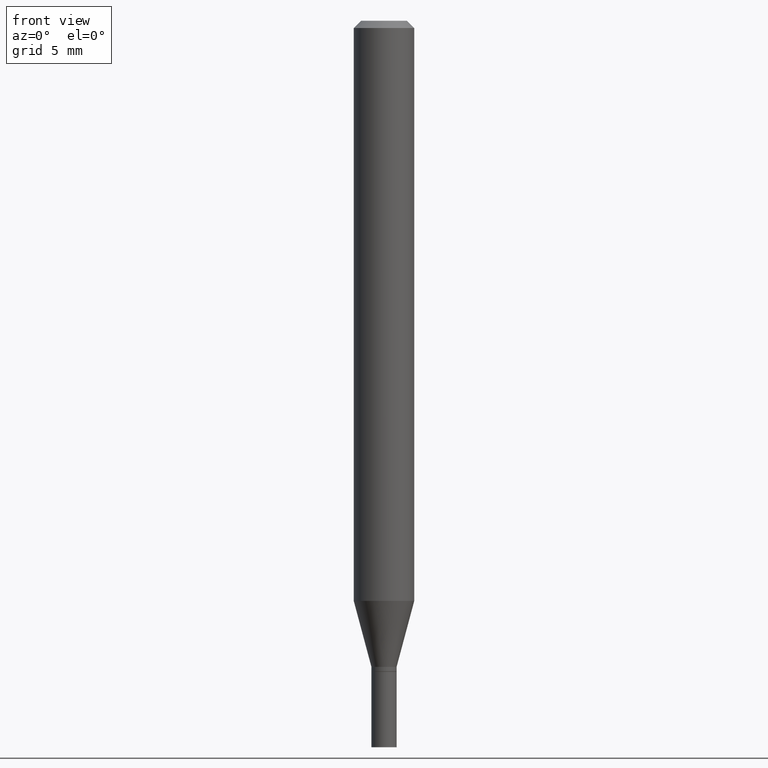
[diagram: clean part render]
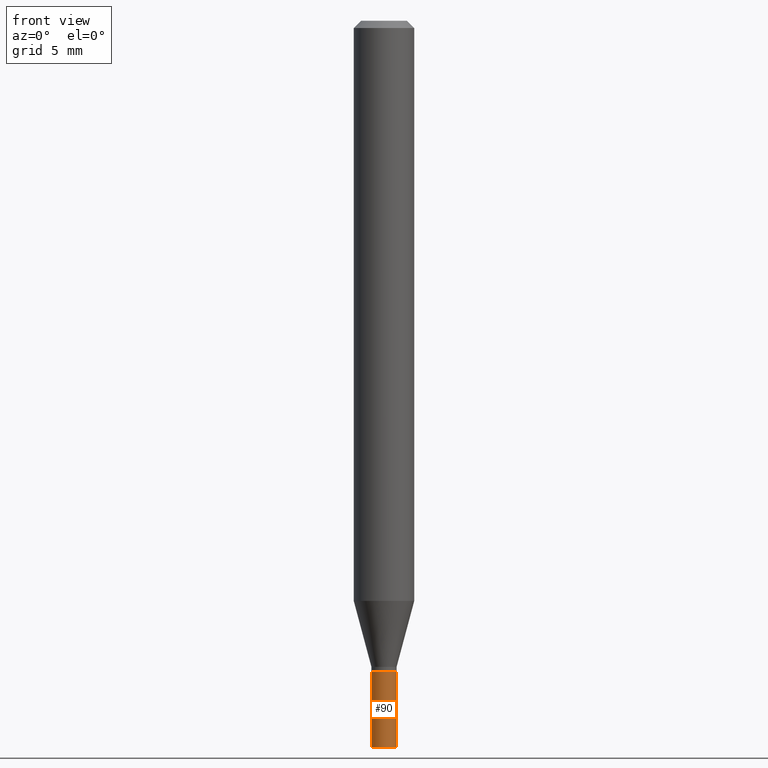
[diagram: same view with one face highlighted and labeled with its STEP entity id]
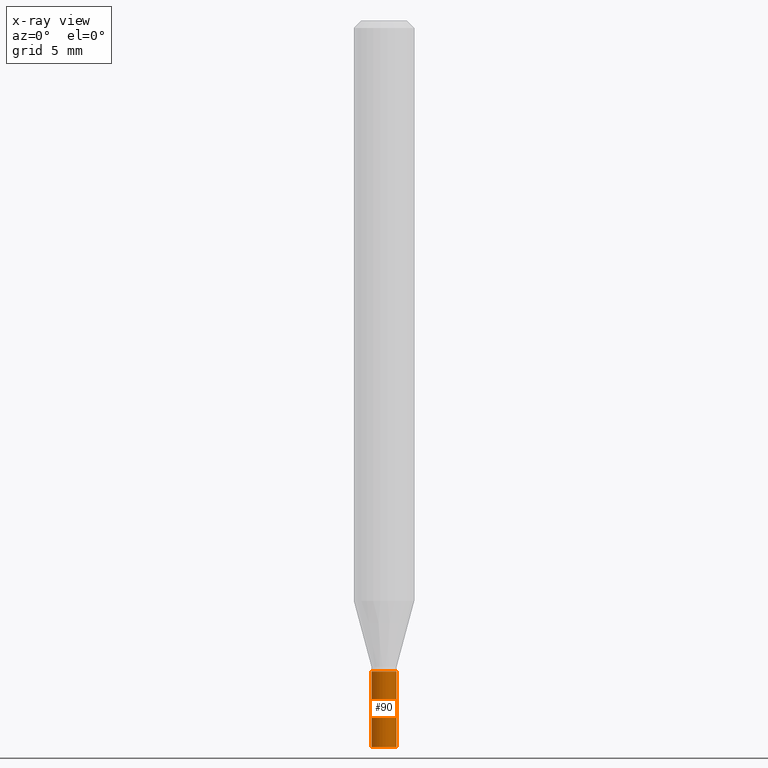
[diagram: x-ray of the same camera — body ghosted, the highlighted face saturated]
A machine part, front view. The second image highlights one B-rep face of the part: STEP entity #90.
The next image is the same camera in x-ray: the body ghosted, the highlighted face saturated — about 0% of this face is hidden behind the body in this view.
In plain terms, the highlighted cylindrical surface (edge-blend (fillet) strip) has radius 0.6604 mm, axis along (-0, 0, 1).
Its self-contained STEP definition (entity closure, byte-faithful):
#2 = DIRECTION ( 'NONE',  ( -2.445468806185136597E-29, 3.491481338843145583E-15, 1.000000000000000000 ) ) ;
#12 = CARTESIAN_POINT ( 'NONE',  ( 0.02599999999999999534, -1.815570296198429286E-16, 1.267805961706943054E-30 ) ) ;
#29 = EDGE_CURVE ( 'NONE', #324, #457, #335, .T. ) ;
#32 = DIRECTION ( 'NONE',  ( -2.445468806185136877E-29, 3.491481338843145188E-15, 1.000000000000000000 ) ) ;
#45 = VERTEX_POINT ( 'NONE', #173 ) ;
#50 = EDGE_CURVE ( 'NONE', #45, #324, #279, .T. ) ;
#59 = DIRECTION ( 'NONE',  ( -2.445468806185136597E-29, 3.491481338843145583E-15, 1.000000000000000000 ) ) ;
#61 = CARTESIAN_POINT ( 'NONE',  ( -0.02599999999999999534, -4.780145352537327941E-15, -1.344000000000000306 ) ) ;
#90 = ADVANCED_FACE ( 'NONE', ( #333 ), #438, .T. ) ;
#106 = ORIENTED_EDGE ( 'NONE', *, *, #29, .T. ) ;
#132 = AXIS2_PLACEMENT_3D ( 'NONE', #159, #2, #466 ) ;
#159 = CARTESIAN_POINT ( 'NONE',  ( 0.000000000000000000, 0.000000000000000000, 0.000000000000000000 ) ) ;
#168 = ORIENTED_EDGE ( 'NONE', *, *, #416, .F. ) ;
#173 = CARTESIAN_POINT ( 'NONE',  ( -0.02599999999999999534, -4.780145352537327941E-15, -1.500000000000000222 ) ) ;
#188 = ORIENTED_EDGE ( 'NONE', *, *, #449, .F. ) ;
#193 = DIRECTION ( 'NONE',  ( 1.000000000000000000, -6.982962677686258822E-15, 0.000000000000000000 ) ) ;
#205 = DIRECTION ( 'NONE',  ( -2.445468806185136597E-29, 3.491481338843145583E-15, 1.000000000000000000 ) ) ;
#222 = CARTESIAN_POINT ( 'NONE',  ( -0.02599999999999999534, 1.847411112976260152E-16, -1.278923123466275386E-30 ) ) ;
#225 = DIRECTION ( 'NONE',  ( 1.000000000000000000, -6.982962677686258822E-15, 0.000000000000000000 ) ) ;
#253 = CARTESIAN_POINT ( 'NONE',  ( 0.02599999999999999534, -4.874107949025031235E-15, -1.344000000000000306 ) ) ;
#279 = CIRCLE ( 'NONE', #452, 0.02599999999999999534 ) ;
#286 = VECTOR ( 'NONE', #32, 39.37007874015748143 ) ;
#295 = VERTEX_POINT ( 'NONE', #61 ) ;
#298 = DIRECTION ( 'NONE',  ( -2.445468806185136877E-29, 3.491481338843145188E-15, 1.000000000000000000 ) ) ;
#324 = VERTEX_POINT ( 'NONE', #407 ) ;
#333 = FACE_OUTER_BOUND ( 'NONE', #439, .T. ) ;
#335 = LINE ( 'NONE', #12, #338 ) ;
#338 = VECTOR ( 'NONE', #298, 39.37007874015748143 ) ;
#369 = CIRCLE ( 'NONE', #426, 0.02599999999999999534 ) ;
#398 = LINE ( 'NONE', #222, #286 ) ;
#405 = CARTESIAN_POINT ( 'NONE',  ( 3.668203209277704895E-29, -5.237222008264718177E-15, -1.500000000000000222 ) ) ;
#407 = CARTESIAN_POINT ( 'NONE',  ( 0.02599999999999999534, -5.418779037884561648E-15, -1.500000000000000222 ) ) ;
#416 = EDGE_CURVE ( 'NONE', #45, #295, #398, .T. ) ;
#426 = AXIS2_PLACEMENT_3D ( 'NONE', #430, #205, #225 ) ;
#430 = CARTESIAN_POINT ( 'NONE',  ( 3.286710075512824263E-29, -4.692550919405188553E-15, -1.344000000000000306 ) ) ;
#438 = CYLINDRICAL_SURFACE ( 'NONE', #132, 0.02599999999999999534 ) ;
#439 = EDGE_LOOP ( 'NONE', ( #168, #446, #106, #188 ) ) ;
#446 = ORIENTED_EDGE ( 'NONE', *, *, #50, .T. ) ;
#449 = EDGE_CURVE ( 'NONE', #295, #457, #369, .T. ) ;
#452 = AXIS2_PLACEMENT_3D ( 'NONE', #405, #59, #193 ) ;
#457 = VERTEX_POINT ( 'NONE', #253 ) ;
#466 = DIRECTION ( 'NONE',  ( 1.000000000000000000, -6.982962677686267499E-15, 4.876176775795935793E-29 ) ) ;